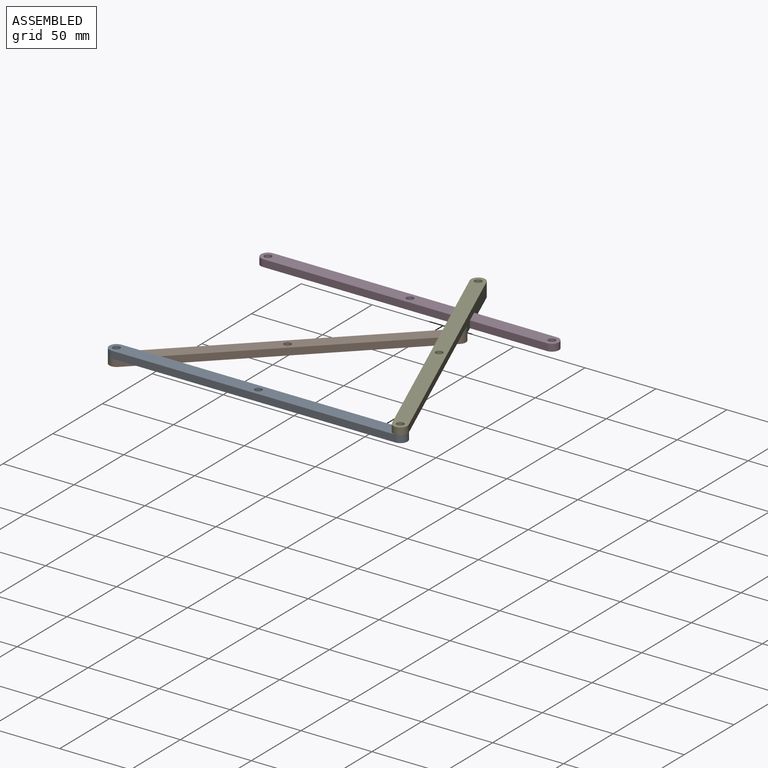
[diagram: assembled view]
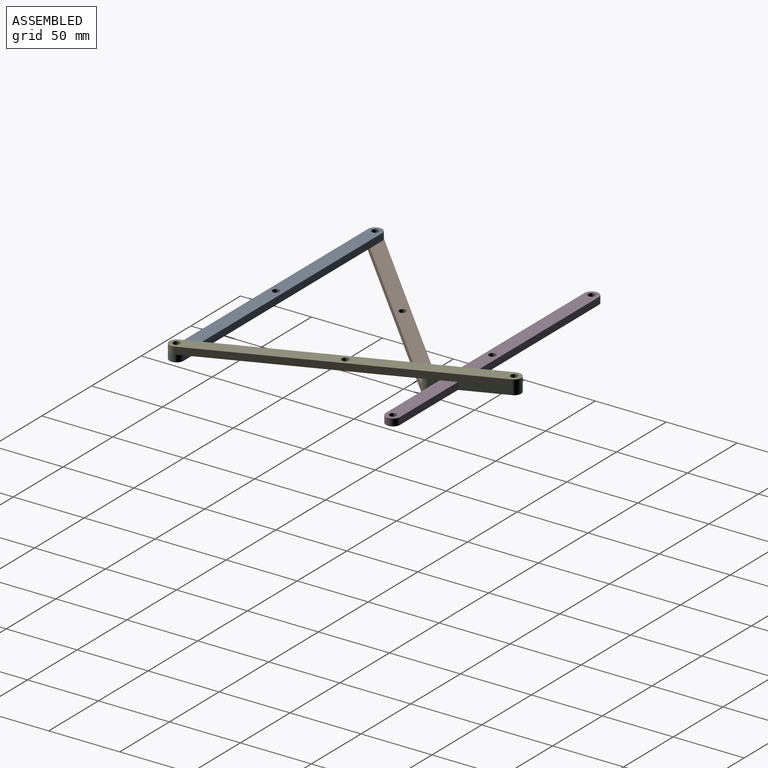
[diagram: assembled view, second angle]
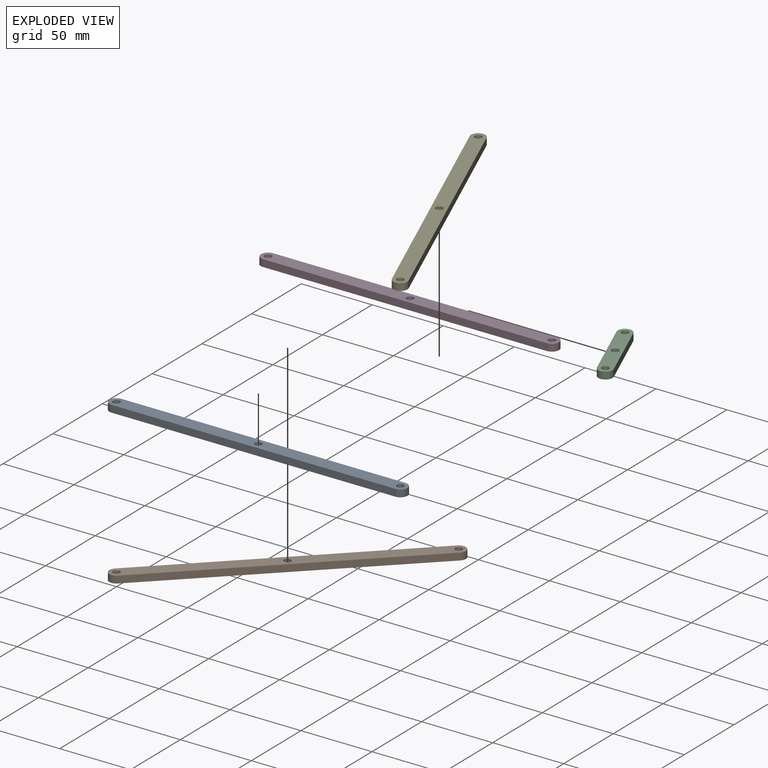
[diagram: exploded view]
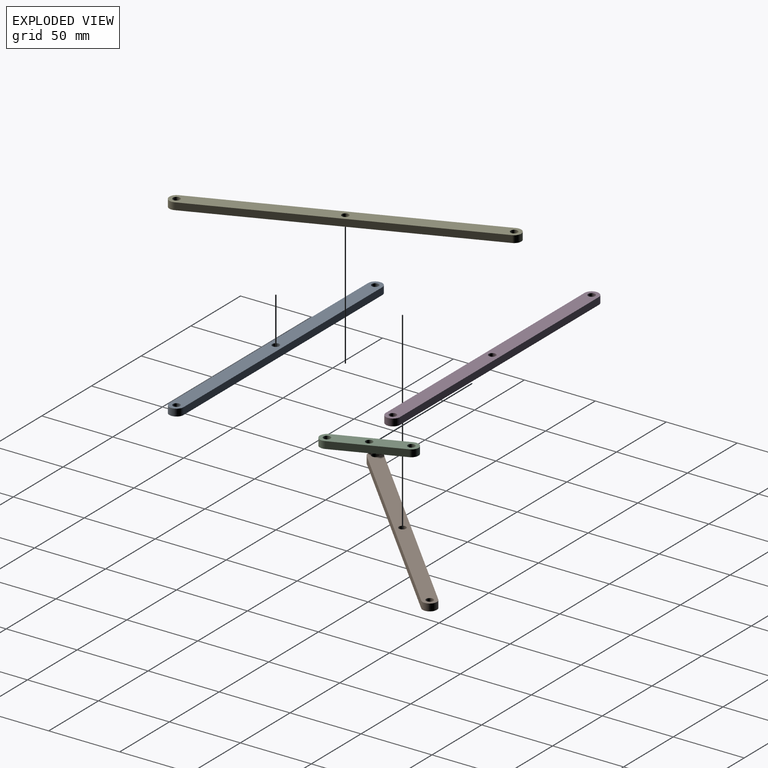
[diagram: exploded view, second angle]
ASSEMBLY  parts=5 mates=4
PART A: 9 faces, bbox 210x10x5 mm
  f0: plane 200x5mm, normal (0,-1,0), area 1000mm2, adj f4,f5,f6,f7
  f1: plane 200x5mm, normal (0,1,0), area 1000mm2, adj f4,f5,f6,f7
  f2: cylinder r=2.5mm len=5mm, axis (0,0,-1), area 78.5mm2, adj f4,f5
  f3: cylinder r=2.5mm len=5mm, axis (0,0,-1), area 78.5mm2, adj f4,f5
  f4: plane 210x10mm, normal (0,0,1), area 2019.6mm2, adj f0,f1,f2,f3,f6,f7,f8
  f5: plane 210x10mm, normal (0,0,-1), area 2019.6mm2, adj f0,f1,f2,f3,f6,f7,f8
  f6: cylinder r=5mm len=10mm, axis (0,0,-1), area 78.5mm2, adj f0,f1,f4,f5
  f7: cylinder r=5mm len=10mm, axis (0,0,-1), area 78.5mm2, adj f0,f1,f4,f5
  f8: cylinder r=2.5mm len=5mm, axis (0,0,-1), area 78.5mm2, adj f4,f5
PART B: same geometry as A
PART C: 9 faces, bbox 60x10x5 mm
  f0: plane 50x5mm, normal (0,-1,0), area 250mm2, adj f4,f5,f6,f7
  f1: plane 50x5mm, normal (0,1,0), area 250mm2, adj f4,f5,f6,f7
  f2: cylinder r=2.5mm len=5mm, axis (0,0,-1), area 78.5mm2, adj f4,f5
  f3: cylinder r=2.5mm len=5mm, axis (0,0,-1), area 78.5mm2, adj f4,f5
  f4: plane 60x10mm, normal (0,0,1), area 519.6mm2, adj f0,f1,f2,f3,f6,f7,f8
  f5: plane 60x10mm, normal (0,0,-1), area 519.6mm2, adj f0,f1,f2,f3,f6,f7,f8
  f6: cylinder r=5mm len=10mm, axis (0,0,-1), area 78.5mm2, adj f0,f1,f4,f5
  f7: cylinder r=5mm len=10mm, axis (0,0,-1), area 78.5mm2, adj f0,f1,f4,f5
  f8: cylinder r=2.5mm len=5mm, axis (0,0,-1), area 78.5mm2, adj f4,f5
PART D: same geometry as A
PART E: same geometry as A
PLACE A at identity fixed
PLACE B rot(axis=(0,0,1),44deg) t=(-28.13,69.53,-5)mm
PLACE C rot(axis=(0,0,-1),68deg) t=(34.37,162.23,0)mm
PLACE D t=(0,152.51,0)mm
PLACE E rot(axis=(0,0,1),112deg) t=(62.5,92.7,5)mm
MATE revolute C.f3 <-> B.f3  axis (0,0,-1) through (43.75,139.05,0)mm
MATE revolute E.f2 <-> A.f3  axis (0,0,-1) through (100,0,5)mm
MATE revolute C.f2 <-> E.f3  axis (0,0,1) through (25,185.4,5)mm
MATE revolute A.f2 <-> B.f2  axis (0,0,-1) through (-100,0,0)mm
